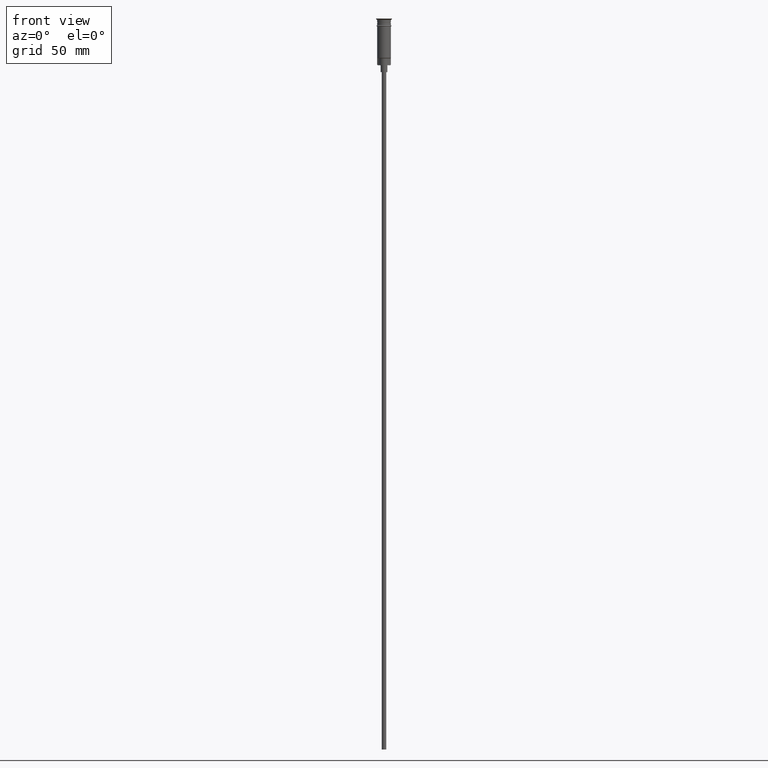
[diagram: clean part render]
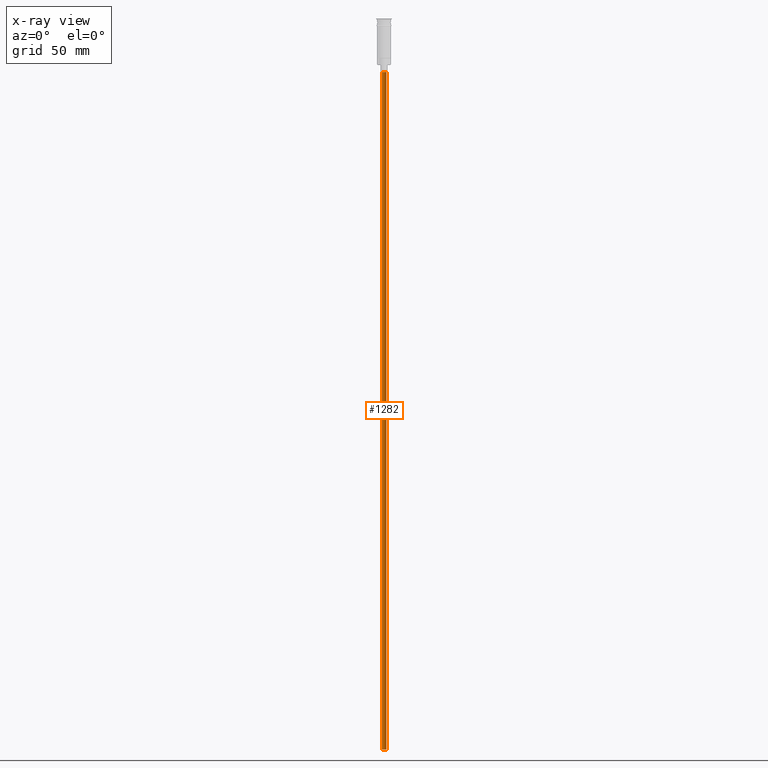
[diagram: x-ray — body ghosted, one internal face saturated and labeled with its STEP entity id]
A machine part, front view, then the same camera in x-ray: the body is ghosted and one INTERNAL B-rep face — a face not visible from any outside direction — is saturated and labeled: STEP entity #1282.
In plain terms, the highlighted cylindrical surface (edge-blend (fillet) strip) has radius 1 mm, axis along (-0, -0, 1).
Its self-contained STEP definition (entity closure, byte-faithful):
#33 = CARTESIAN_POINT ( 'NONE',  ( 0.9999999999999997780, 0.000000000000000000, -320.5000000000000000 ) ) ;
#288 = VERTEX_POINT ( 'NONE', #797 ) ;
#300 = LINE ( 'NONE', #663, #1222 ) ;
#315 = DIRECTION ( 'NONE',  ( -1.000000000000000000, 0.000000000000000000, 0.000000000000000000 ) ) ;
#351 = CARTESIAN_POINT ( 'NONE',  ( 0.000000000000000000, 0.000000000000000000, -320.5000000000000000 ) ) ;
#466 = CYLINDRICAL_SURFACE ( 'NONE', #1084, 0.9999999999999997780 ) ;
#475 = DIRECTION ( 'NONE',  ( -1.000000000000000000, 0.000000000000000000, 0.000000000000000000 ) ) ;
#484 = CARTESIAN_POINT ( 'NONE',  ( 0.000000000000000000, 0.000000000000000000, -23.50000000000000000 ) ) ;
#513 = CARTESIAN_POINT ( 'NONE',  ( 0.000000000000000000, 0.000000000000000000, -320.5000000000000000 ) ) ;
#577 = AXIS2_PLACEMENT_3D ( 'NONE', #513, #1559, #315 ) ;
#599 = CARTESIAN_POINT ( 'NONE',  ( -0.9999999999999997780, 1.224646799147352961E-16, -23.50000000000000000 ) ) ;
#663 = CARTESIAN_POINT ( 'NONE',  ( -0.9999999999999997780, 1.224646799147352961E-16, -320.5000000000000000 ) ) ;
#666 = ORIENTED_EDGE ( 'NONE', *, *, #1407, .T. ) ;
#727 = DIRECTION ( 'NONE',  ( -0.000000000000000000, -0.000000000000000000, 1.000000000000000000 ) ) ;
#739 = DIRECTION ( 'NONE',  ( 0.000000000000000000, 0.000000000000000000, -1.000000000000000000 ) ) ;
#780 = LINE ( 'NONE', #33, #920 ) ;
#797 = CARTESIAN_POINT ( 'NONE',  ( 0.9999999999999997780, 0.000000000000000000, -320.5000000000000000 ) ) ;
#837 = EDGE_CURVE ( 'NONE', #288, #1296, #780, .T. ) ;
#856 = ORIENTED_EDGE ( 'NONE', *, *, #898, .T. ) ;
#898 = EDGE_CURVE ( 'NONE', #1277, #1296, #1219, .T. ) ;
#917 = DIRECTION ( 'NONE',  ( -0.000000000000000000, -0.000000000000000000, 1.000000000000000000 ) ) ;
#920 = VECTOR ( 'NONE', #917, 1000.000000000000000 ) ;
#925 = DIRECTION ( 'NONE',  ( -0.000000000000000000, -0.000000000000000000, 1.000000000000000000 ) ) ;
#959 = DIRECTION ( 'NONE',  ( 1.000000000000000000, 0.000000000000000000, 0.000000000000000000 ) ) ;
#988 = ORIENTED_EDGE ( 'NONE', *, *, #837, .F. ) ;
#993 = VERTEX_POINT ( 'NONE', #1520 ) ;
#1053 = EDGE_LOOP ( 'NONE', ( #1469, #666, #856, #988 ) ) ;
#1054 = AXIS2_PLACEMENT_3D ( 'NONE', #484, #739, #475 ) ;
#1084 = AXIS2_PLACEMENT_3D ( 'NONE', #351, #727, #959 ) ;
#1205 = FACE_OUTER_BOUND ( 'NONE', #1053, .T. ) ;
#1219 = CIRCLE ( 'NONE', #1054, 0.9999999999999997780 ) ;
#1222 = VECTOR ( 'NONE', #925, 1000.000000000000000 ) ;
#1235 = CARTESIAN_POINT ( 'NONE',  ( 0.9999999999999997780, 0.000000000000000000, -23.50000000000000000 ) ) ;
#1277 = VERTEX_POINT ( 'NONE', #599 ) ;
#1282 = ADVANCED_FACE ( 'NONE', ( #1205 ), #466, .T. ) ;
#1296 = VERTEX_POINT ( 'NONE', #1235 ) ;
#1297 = CIRCLE ( 'NONE', #577, 0.9999999999999997780 ) ;
#1331 = EDGE_CURVE ( 'NONE', #993, #288, #1297, .T. ) ;
#1407 = EDGE_CURVE ( 'NONE', #993, #1277, #300, .T. ) ;
#1469 = ORIENTED_EDGE ( 'NONE', *, *, #1331, .F. ) ;
#1520 = CARTESIAN_POINT ( 'NONE',  ( -0.9999999999999997780, 1.224646799147352961E-16, -320.5000000000000000 ) ) ;
#1559 = DIRECTION ( 'NONE',  ( 0.000000000000000000, 0.000000000000000000, -1.000000000000000000 ) ) ;